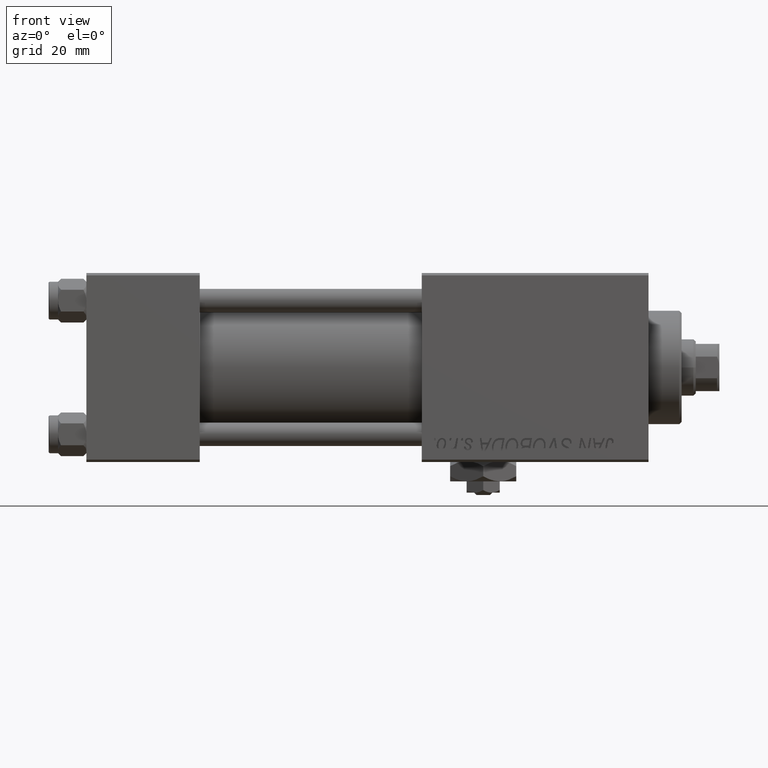
[diagram: clean part render]
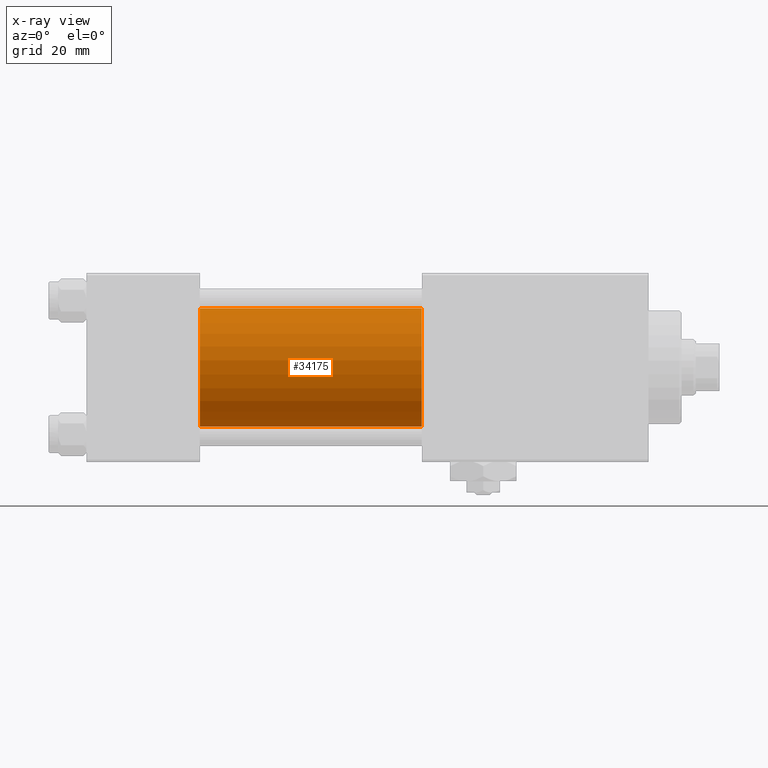
[diagram: x-ray — body ghosted, one internal face saturated and labeled with its STEP entity id]
A machine part, front view, then the same camera in x-ray: the body is ghosted and one INTERNAL B-rep face — a face not visible from any outside direction — is saturated and labeled: STEP entity #34175.
In plain terms, the highlighted cylindrical surface (partial cylindrical patch) has radius 12.5 mm, axis along (-1, -0, -0).
Its self-contained STEP definition (entity closure, byte-faithful):
#948 = VECTOR ( 'NONE', #9401, 1000.000000000000000 ) ;
#1729 = CARTESIAN_POINT ( 'NONE',  ( 71.00000000000001421, -2.602085213965210642E-15, 0.000000000000000000 ) ) ;
#2224 = CARTESIAN_POINT ( 'NONE',  ( 71.00000000000001421, -1.071276715031019515E-15, -12.49999999999999645 ) ) ;
#2619 = DIRECTION ( 'NONE',  ( 1.000000000000000000, 0.000000000000000000, 0.000000000000000000 ) ) ;
#3755 = DIRECTION ( 'NONE',  ( -1.000000000000000000, -0.000000000000000000, -0.000000000000000000 ) ) ;
#4336 = CARTESIAN_POINT ( 'NONE',  ( 71.00000000000001421, -2.602085213965210642E-15, 0.000000000000000000 ) ) ;
#5425 = DIRECTION ( 'NONE',  ( 0.000000000000000000, 0.000000000000000000, 1.000000000000000000 ) ) ;
#5749 = EDGE_CURVE ( 'NONE', #48492, #30473, #7710, .T. ) ;
#5800 = AXIS2_PLACEMENT_3D ( 'NONE', #1729, #41152, #5425 ) ;
#6825 = ORIENTED_EDGE ( 'NONE', *, *, #38703, .T. ) ;
#7286 = CARTESIAN_POINT ( 'NONE',  ( 24.00000000000000000, -2.602085213965210642E-15, 12.49999999999999645 ) ) ;
#7710 = LINE ( 'NONE', #23734, #25034 ) ;
#9401 = DIRECTION ( 'NONE',  ( -1.000000000000000000, -0.000000000000000000, -0.000000000000000000 ) ) ;
#13015 = EDGE_CURVE ( 'NONE', #48139, #30199, #48823, .T. ) ;
#16045 = CIRCLE ( 'NONE', #22757, 12.49999999999999645 ) ;
#20639 = DIRECTION ( 'NONE',  ( 1.000000000000000000, 0.000000000000000000, 0.000000000000000000 ) ) ;
#21339 = AXIS2_PLACEMENT_3D ( 'NONE', #33887, #2619, #34666 ) ;
#21736 = CARTESIAN_POINT ( 'NONE',  ( 71.00000000000001421, -2.602085213965210642E-15, 12.49999999999999645 ) ) ;
#22705 = CARTESIAN_POINT ( 'NONE',  ( 24.00000000000000000, -1.071276715031019515E-15, -12.49999999999999645 ) ) ;
#22757 = AXIS2_PLACEMENT_3D ( 'NONE', #4336, #20639, #24313 ) ;
#23734 = CARTESIAN_POINT ( 'NONE',  ( 71.00000000000001421, -1.071276715031019515E-15, -12.49999999999999645 ) ) ;
#24313 = DIRECTION ( 'NONE',  ( 0.000000000000000000, 0.000000000000000000, -1.000000000000000000 ) ) ;
#25034 = VECTOR ( 'NONE', #3755, 1000.000000000000000 ) ;
#30199 = VERTEX_POINT ( 'NONE', #7286 ) ;
#30473 = VERTEX_POINT ( 'NONE', #22705 ) ;
#31109 = EDGE_LOOP ( 'NONE', ( #6825, #39688, #38967, #40940 ) ) ;
#33066 = CIRCLE ( 'NONE', #21339, 12.49999999999999645 ) ;
#33887 = CARTESIAN_POINT ( 'NONE',  ( 24.00000000000000000, -2.602085213965210642E-15, 0.000000000000000000 ) ) ;
#34175 = ADVANCED_FACE ( 'NONE', ( #41403 ), #45091, .F. ) ;
#34666 = DIRECTION ( 'NONE',  ( 0.000000000000000000, 0.000000000000000000, -1.000000000000000000 ) ) ;
#38703 = EDGE_CURVE ( 'NONE', #48139, #48492, #16045, .T. ) ;
#38967 = ORIENTED_EDGE ( 'NONE', *, *, #49832, .F. ) ;
#39688 = ORIENTED_EDGE ( 'NONE', *, *, #5749, .T. ) ;
#40940 = ORIENTED_EDGE ( 'NONE', *, *, #13015, .F. ) ;
#41152 = DIRECTION ( 'NONE',  ( -1.000000000000000000, -0.000000000000000000, -0.000000000000000000 ) ) ;
#41403 = FACE_OUTER_BOUND ( 'NONE', #31109, .T. ) ;
#41683 = CARTESIAN_POINT ( 'NONE',  ( 71.00000000000001421, -2.602085213965210642E-15, 12.49999999999999645 ) ) ;
#45091 = CYLINDRICAL_SURFACE ( 'NONE', #5800, 12.49999999999999645 ) ;
#48139 = VERTEX_POINT ( 'NONE', #21736 ) ;
#48492 = VERTEX_POINT ( 'NONE', #2224 ) ;
#48823 = LINE ( 'NONE', #41683, #948 ) ;
#49832 = EDGE_CURVE ( 'NONE', #30199, #30473, #33066, .T. ) ;